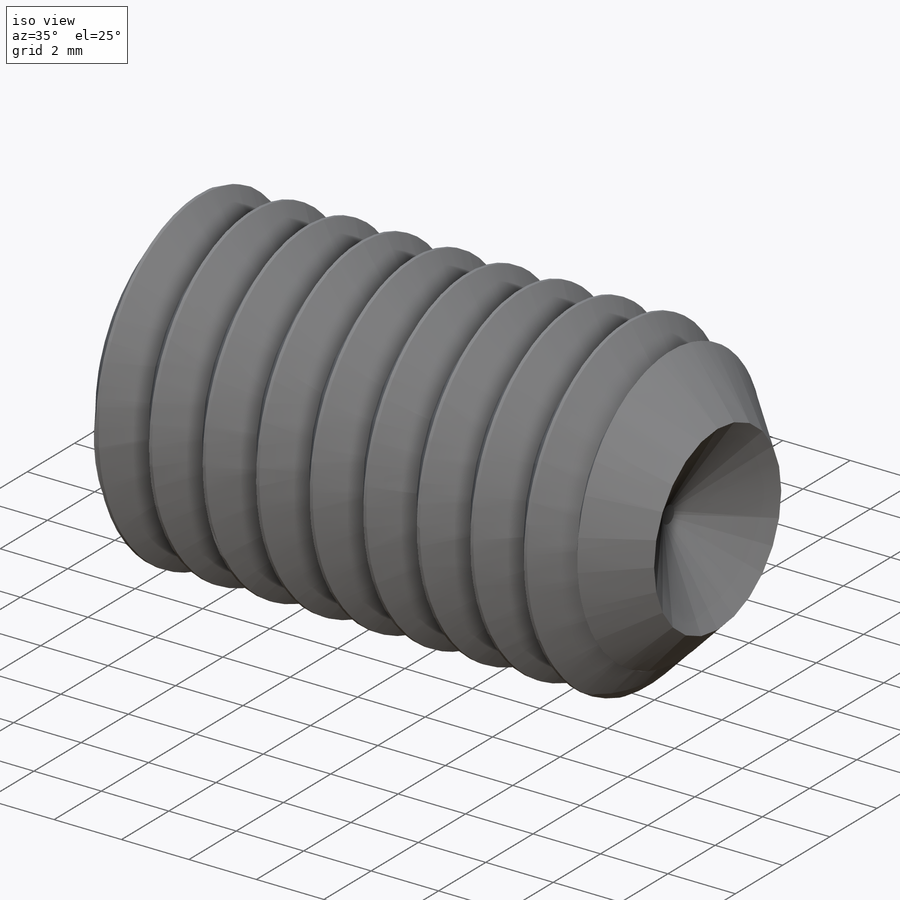
[diagram: iso view]
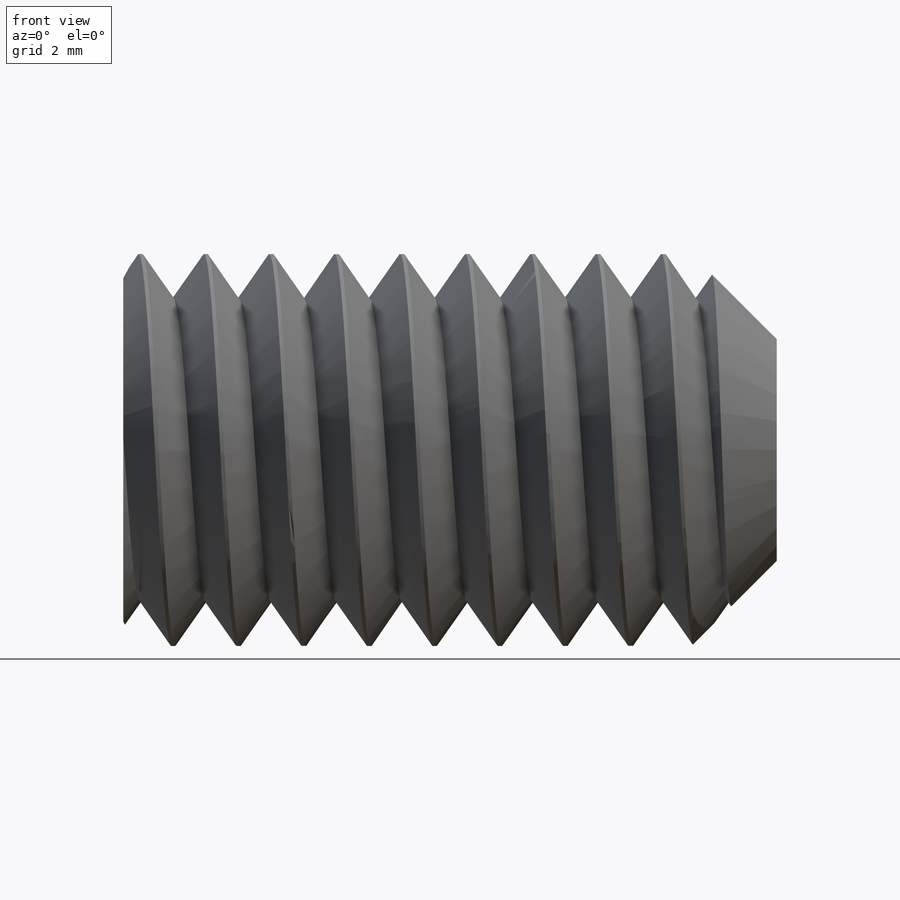
[diagram: front view]
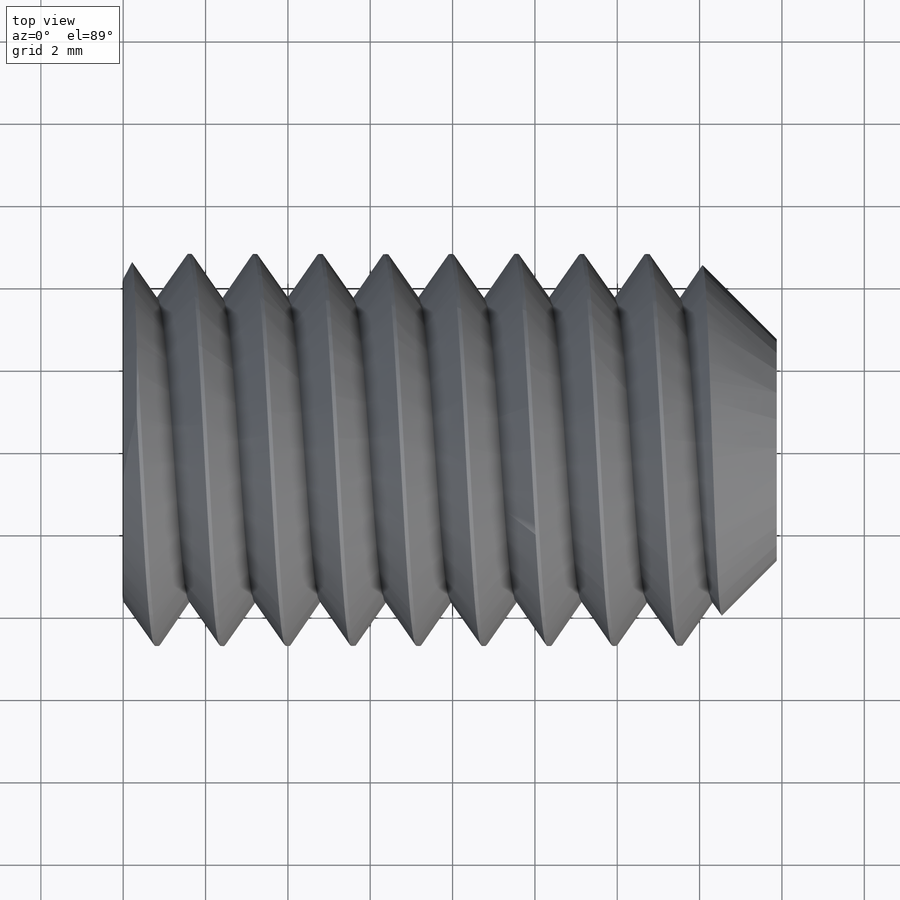
[diagram: top view]
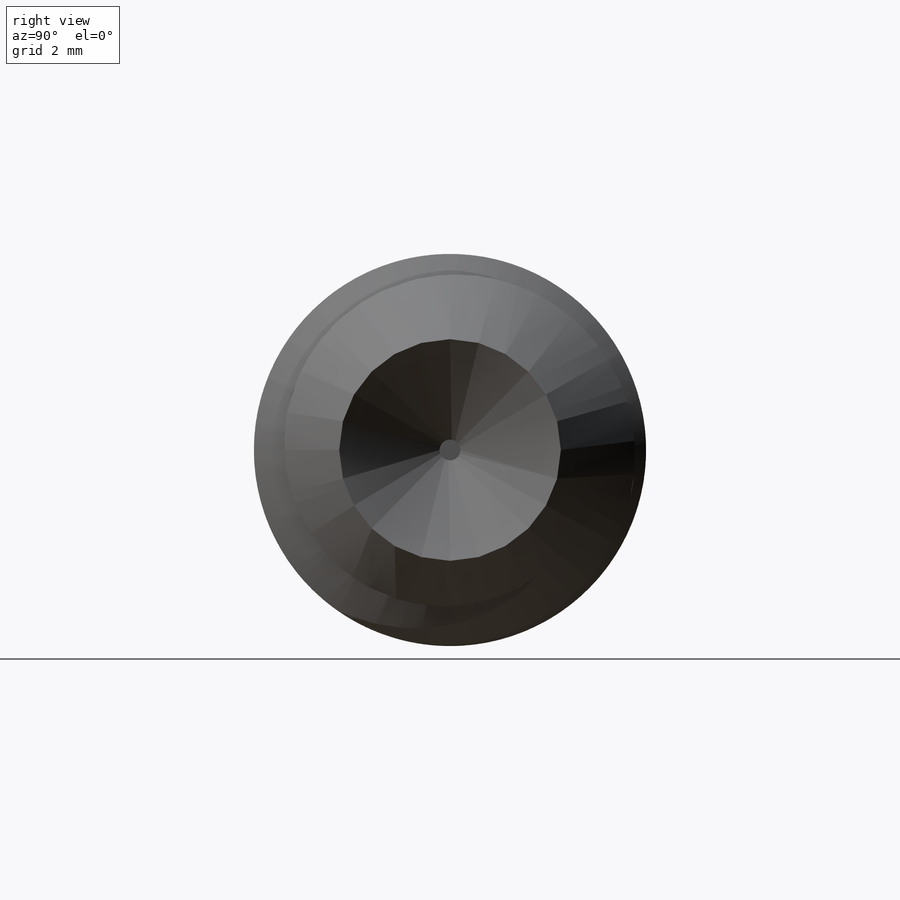
[diagram: right view]
SOLIDWORKS PART (.sldprt)
format: sldprt  version: not decoded by parser v0  size: 1,024,000 bytes
history: native  units: mm
features: sketch x14, cut_revolve x8, plane x4, pattern_circular x4, revolve x2, cut_extrude x2, material x1, thread x1, pattern_linear x1, helix x1, sweep x1 (+9 scaffold rows collapsed)
feature tree (48):
  scaffold x9  (default folders/planes/origin — collapsed)
  material  "CARBON STEEL CHROME"
  plane  "Plane1"
  plane  "Plane2"
  plane  "Plane3"
  sketch  "BodySke"  dims[c1.D2=~9.38469mm c1.Diameter=9.525mm c1.Length=31.75mm c1.Head_dia=16.6624mm c1.D1=8.3312mm c1.Head_ht=5.0546mm c1.Head_side_ht=0.7874mm c1.Minor_dia=7.6327mm c2.D2=~3.81635mm c2.Body_ch_ang=45.0deg c2.Advance=1.5875mm c2.Thread_nom=31.75mm c2.Thread_lim=36.5125mm]
  revolve  "BaseBody"  [1 undecoded]
  thread  "ThreadCosmetic"  Diameter=30.1625mm Thread_length=30.1625mm Thread_minor=7.6327mm  [1 undecoded]
  sketch  "Sketch5"  dims[D1=0.381mm D2=~0.943357mm]
  revolve  "Revolve1"  Angle=360deg
  sketch  "Sketch2"  dims[c1.D1=7.9375mm c1.D2=25.4mm c2.D2=60.0deg c2.Wall_thickness=12.827mm c2.PreBroach_depth=3.0988mm c2.PreBroach_dia=5.5626mm]
  cut_revolve  "PreBroach"  Angle=360deg
  sketch  "Sketch3"  dims[c1.D1=9.525mm c1.D2=9.525mm c1.Hex_size=19.05mm c1.D4=~14.664697mm c2.D4=120.0deg c2.Hex_size=15.875mm c2.D1=7.9375mm c2.D2=7.9375mm c2.D3=~13.528644mm c3.D3=120.0deg c3.D4=15.875mm c3.Hex_size=5.5626mm c3.D1=7.9375mm c3.D2=7.9375mm c4.D3=5.5626mm c4.D1=2.7813mm c4.D2=2.7813mm]
  cut_extrude  "Hex"  [1 undecoded]
  sketch  "Sketch4"  dims[c1.Spline_n_dim=5.6134mm c1.Spline_m_dim=6.5024mm c1.D1=5.8547mm c2.D1=30.0deg c2.D2=5.8547mm c3.D2=60.0deg c3.Spline_p_dim=2.794mm c4.Spline_p_dim=1.524mm c4.D3=0.762mm]
  cut_extrude  "Spline"  Depth=3.0988mm Key_eng=3.0988mm
  pattern_circular  "CirPattern1"  Count=6 Angle=60deg Num_teeth=6
  sketch  "ThdSchSke"  dims[c1.Thread_minor=~1.03886mm c1.Diameter=~1.413535mm c1.Start=~0.988134mm c1.D4=~4.446753mm c1.Vee=60.0deg c2.Thread_minor=~1.03886mm c2.Start=~2.540025mm c2.D1=~0.108159mm c2.D2=~0.108159mm c3.D1=~0.216319mm c3.SideAngle=55.0deg c3.D2=~0.216319mm c3.VeeAngle=70.0deg c3.Thread_minor=7.6327mm c3.Overcut=~11.90625mm c3.Diameter=9.525mm c3.D6=~8.326268mm c4.D1=~8.326268mm c5.D1=90.0deg c5.Start=63.5mm c6.Start=140.4874mm c7.Start=8.3947mm c8.Start=8.3947mm c9.Start=6.6421mm]
  cut_revolve  "ThreadSchematic"  Angle=360deg
  pattern_linear  "ThdSchPat"  Spacing1=1.5875mm Spacing2=50mm Advance=1.5875mm  [1 undecoded]
  pattern_circular  "ConfigurationName"  CopiedFlag=1  [2 undecoded]
  pattern_circular  "PartNumberID"  [2 undecoded]
  pattern_circular  "ConfigurationName"  [2 undecoded]
  plane  "Plane4"  Offset=5.9309mm
  sketch  "Sketch7"  dims[D1=7.3914mm]
  helix  "Helix/Spiral1"  Pitch=0.79375mm
  sketch  "Sketch8"  dims[c1.D1=~5.353861mm c1.D2=~7.07673mm c2.D1=~0.677651mm]
  cut_revolve  "Cut-Revolve1"  Angle=360deg
  sketch  "Sketch6"  dims[c1.Thread_minor=~1.03886mm c1.Diameter=~1.413535mm c1.Start=~0.988134mm c1.D4=~4.446753mm c1.Vee=60.0deg c2.Thread_minor=~1.03886mm c2.Start=~2.540025mm c2.D1=~0.108159mm c2.D2=~0.108159mm c3.D1=~0.216319mm c3.SideAngle=55.0deg c3.D2=~0.216319mm c3.VeeAngle=70.0deg c3.Thread_minor=7.3914mm c3.Overcut=~12.010815mm c3.Diameter=~9.629565mm c3.D6=~8.326268mm c4.D1=~8.326268mm c5.D1=90.0deg c5.Start=63.5mm c6.Start=140.4874mm c7.Start=8.3947mm c8.Start=8.3947mm c9.Start=6.6421mm c9.D1=~1.119082mm c9.D2=~1.56718mm]
  sweep  "Cut-Sweep3"
  sketch  "Sketch9"  dims[c1.D1=~2.643939mm c2.D1=45.0deg c2.D2=~1.592497mm c3.D2=45.0deg c4.D2=~2.252132mm c5.D2=59.0deg c5.D3=15.875mm c5.D4=6.35mm c5.D5=5.3848mm c5.D6=0.508mm]
  cut_revolve  "Cut-Revolve2"  Angle=360deg
  sketch  "Sketch10"  dims[c1.D1=6.35mm c1.D2=~3.058976mm c2.D2=45.0deg c2.D3=2.5146mm]
  cut_revolve  "Cut-Revolve3"  Angle=360deg
  sketch  "Sketch11"  dims[D1=~2.771132mm D2=~0.932164mm]
  cut_revolve  "Cut-Revolve4"  Angle=360deg
  sketch  "Sketch12"  dims[D1=5.3848mm]
  cut_revolve  "Cut-Revolve5"  Angle=360deg
  sketch  "Sketch13"  dims[c1.D1=~7.783159mm c2.D1=45.0deg c2.D2=~0.020064mm]
  cut_revolve  "Cut-Revolve6"  Angle=360deg
decode coverage: 29 of 34 modeling features carry decoded parameters
note: ~ marks probable driven/reference dimensions
note: 10 parameter values undecoded
note: suppression state not decoded; provenance and decode notes live in map.json
